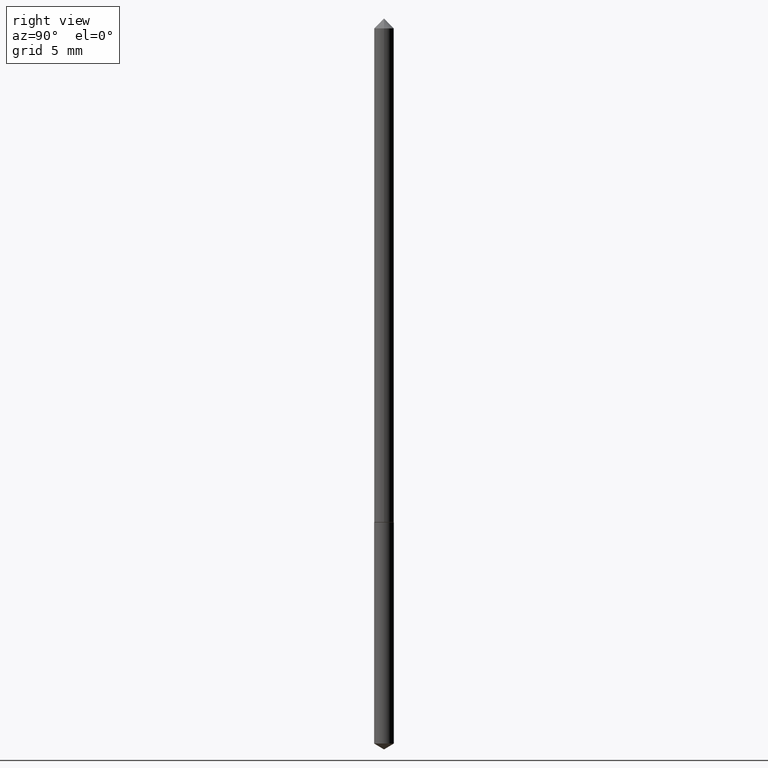
[diagram: clean part render]
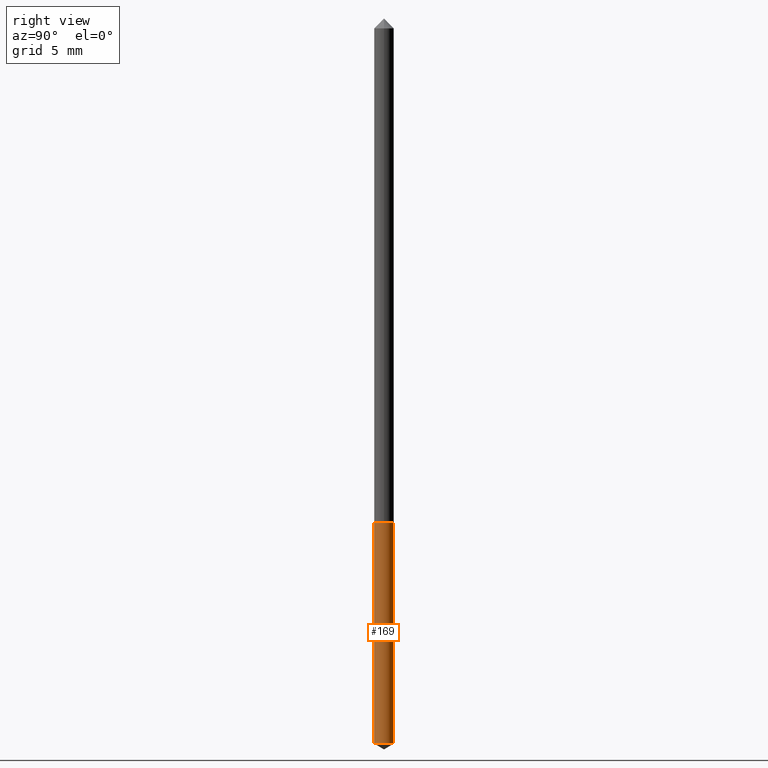
[diagram: same view with one face highlighted and labeled with its STEP entity id]
A machine part, right view. The second image highlights one B-rep face of the part: STEP entity #169.
In plain terms, the highlighted cylindrical surface (edge-blend (fillet) strip) has radius 0.4 mm, axis along (-0, 0, 1).
Its self-contained STEP definition (entity closure, byte-faithful):
#18 = ORIENTED_EDGE ( 'NONE', *, *, #133, .T. ) ;
#20 = EDGE_CURVE ( 'NONE', #229, #84, #152, .T. ) ;
#32 = VECTOR ( 'NONE', #277, 39.37007874015748143 ) ;
#37 = DIRECTION ( 'NONE',  ( -2.445331127242013945E-29, 3.491678502925895988E-15, 1.000000000000000000 ) ) ;
#39 = CIRCLE ( 'NONE', #168, 0.01575000000000000011 ) ;
#48 = DIRECTION ( 'NONE',  ( -6.982962677686265922E-15, -1.000000000000000000, 0.000000000000000000 ) ) ;
#55 = DIRECTION ( 'NONE',  ( -2.445331127242013945E-29, 3.491678502925895988E-15, 1.000000000000000000 ) ) ;
#56 = CARTESIAN_POINT ( 'NONE',  ( -1.099816621735386641E-16, -0.01575000000000285894, -0.8189000000000000723 ) ) ;
#58 = EDGE_CURVE ( 'NONE', #229, #223, #39, .T. ) ;
#73 = AXIS2_PLACEMENT_3D ( 'NONE', #158, #37, #314 ) ;
#76 = CARTESIAN_POINT ( 'NONE',  ( 2.002594405385008597E-29, -2.859174068378652141E-15, -0.8189000000000000723 ) ) ;
#84 = VERTEX_POINT ( 'NONE', #254 ) ;
#119 = ORIENTED_EDGE ( 'NONE', *, *, #20, .F. ) ;
#121 = VECTOR ( 'NONE', #300, 39.37007874015748143 ) ;
#133 = EDGE_CURVE ( 'NONE', #223, #247, #249, .T. ) ;
#142 = CARTESIAN_POINT ( 'NONE',  ( -1.099816621735300853E-16, -0.01575000000000409753, -1.171636445250316072 ) ) ;
#152 = LINE ( 'NONE', #56, #121 ) ;
#158 = CARTESIAN_POINT ( 'NONE',  ( 2.002594405385008597E-29, -2.859174068378652141E-15, -0.8189000000000000723 ) ) ;
#165 = ORIENTED_EDGE ( 'NONE', *, *, #359, .F. ) ;
#168 = AXIS2_PLACEMENT_3D ( 'NONE', #232, #55, #328 ) ;
#169 = ADVANCED_FACE ( 'NONE', ( #272 ), #351, .T. ) ;
#181 = CARTESIAN_POINT ( 'NONE',  ( 1.119104808822444749E-16, 0.01574999999999714129, -0.8189000000000000723 ) ) ;
#193 = DIRECTION ( 'NONE',  ( -2.445331127242013945E-29, 3.491678502925895988E-15, 1.000000000000000000 ) ) ;
#223 = VERTEX_POINT ( 'NONE', #245 ) ;
#229 = VERTEX_POINT ( 'NONE', #142 ) ;
#232 = CARTESIAN_POINT ( 'NONE',  ( 2.865151814668304796E-29, -4.090816331457678036E-15, -1.171636445250316072 ) ) ;
#242 = ORIENTED_EDGE ( 'NONE', *, *, #58, .T. ) ;
#245 = CARTESIAN_POINT ( 'NONE',  ( 1.119104808822444502E-16, 0.01574999999999591310, -1.171636445250316072 ) ) ;
#247 = VERTEX_POINT ( 'NONE', #181 ) ;
#249 = LINE ( 'NONE', #299, #32 ) ;
#252 = CIRCLE ( 'NONE', #73, 0.01575000000000000011 ) ;
#254 = CARTESIAN_POINT ( 'NONE',  ( -1.099816621735386641E-16, -0.01575000000000285894, -0.8189000000000000723 ) ) ;
#261 = AXIS2_PLACEMENT_3D ( 'NONE', #76, #193, #48 ) ;
#272 = FACE_OUTER_BOUND ( 'NONE', #346, .T. ) ;
#277 = DIRECTION ( 'NONE',  ( -2.445331127242013945E-29, 3.491678502925895988E-15, 1.000000000000000000 ) ) ;
#299 = CARTESIAN_POINT ( 'NONE',  ( 1.119104808822357974E-16, 0.01574999999999714129, -0.8189000000000000723 ) ) ;
#300 = DIRECTION ( 'NONE',  ( -2.445331127242013945E-29, 3.491678502925895988E-15, 1.000000000000000000 ) ) ;
#314 = DIRECTION ( 'NONE',  ( -6.982962677686265922E-15, -1.000000000000000000, 0.000000000000000000 ) ) ;
#328 = DIRECTION ( 'NONE',  ( -6.982962677686265922E-15, -1.000000000000000000, 0.000000000000000000 ) ) ;
#346 = EDGE_LOOP ( 'NONE', ( #242, #18, #165, #119 ) ) ;
#351 = CYLINDRICAL_SURFACE ( 'NONE', #261, 0.01575000000000000011 ) ;
#359 = EDGE_CURVE ( 'NONE', #84, #247, #252, .T. ) ;